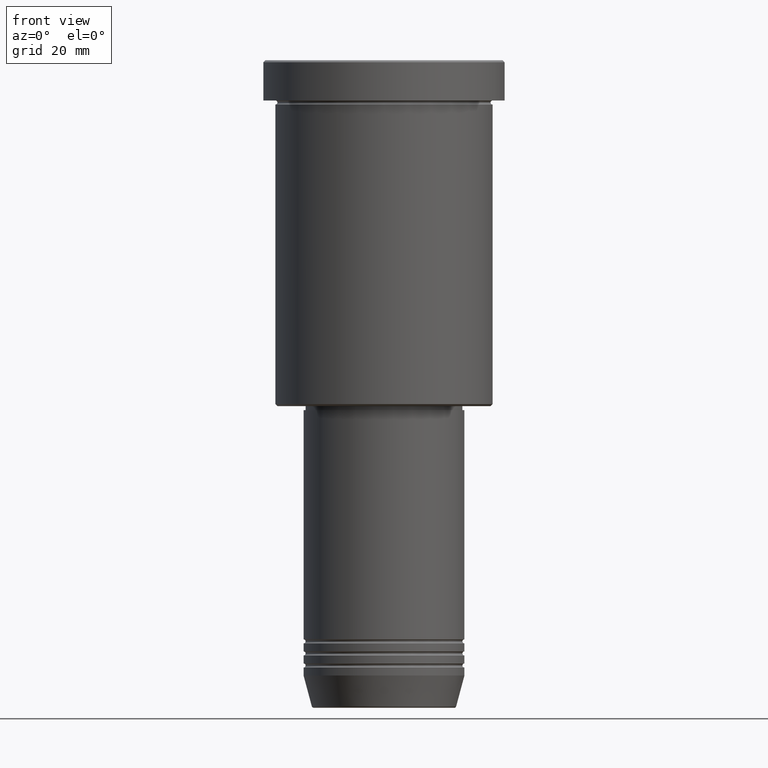
[diagram: clean part render]
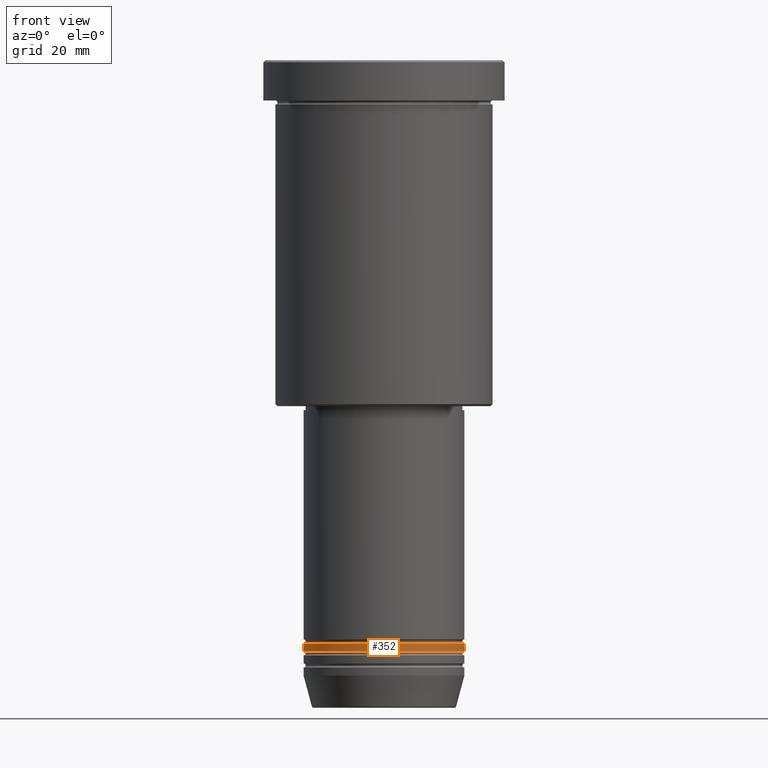
[diagram: same view with one face highlighted and labeled with its STEP entity id]
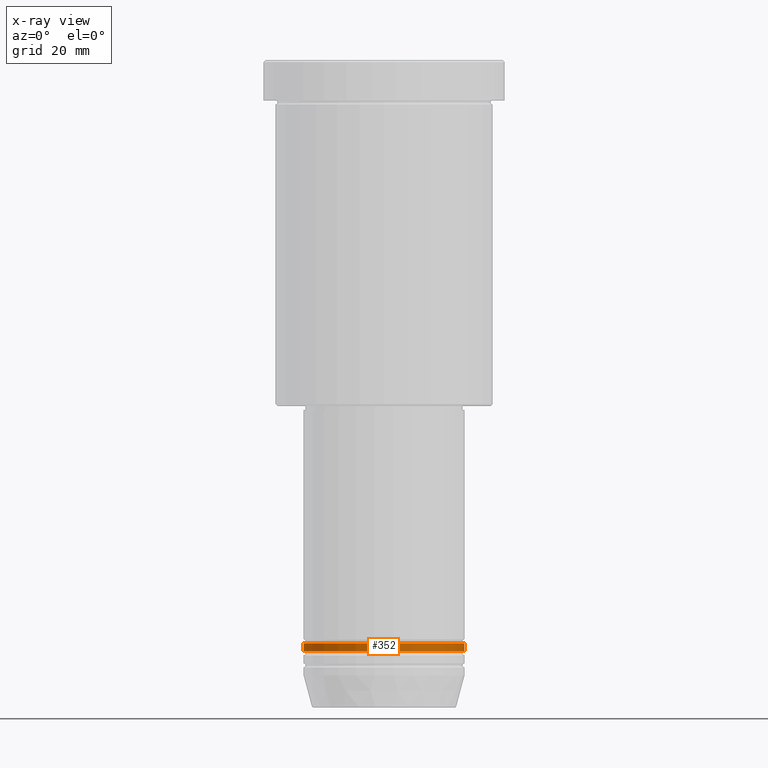
[diagram: x-ray of the same camera — body ghosted, the highlighted face saturated]
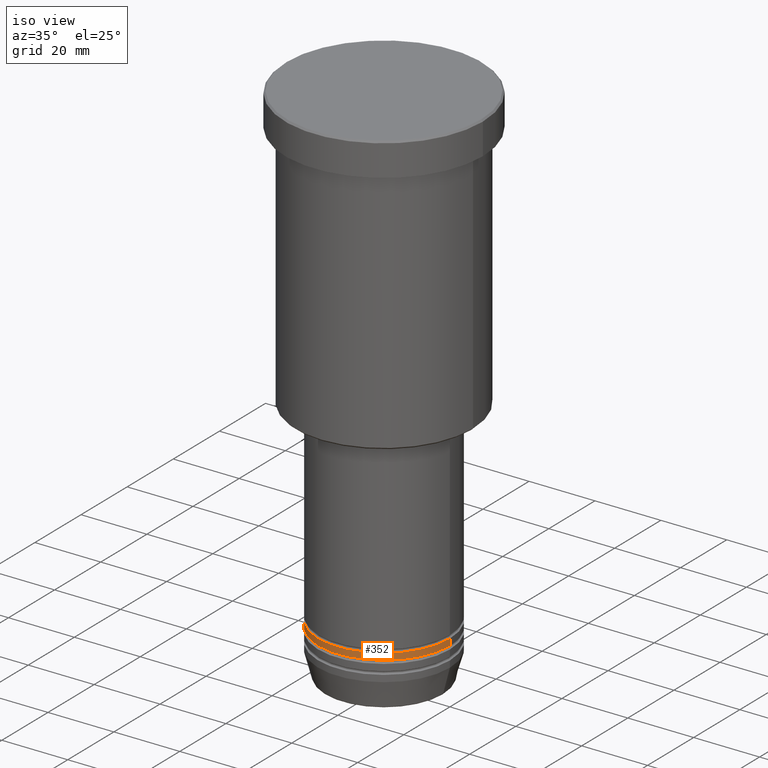
[diagram: same view with one face highlighted and labeled with its STEP entity id]
A machine part, front view. The second image highlights one B-rep face of the part: STEP entity #352.
The next image is the same camera in x-ray: the body ghosted, the highlighted face saturated — about 0% of this face is hidden behind the body in this view.
A second angle (iso view) of the same face is appended — the face is thin or edge-on in the first view.
In plain terms, the highlighted cylindrical surface (partial cylindrical patch) has radius 20 mm, axis along (-0, -0, 1).
Its self-contained STEP definition (entity closure, byte-faithful):
#14 = LINE ( 'NONE', #765, #993 ) ;
#34 = DIRECTION ( 'NONE',  ( -0.000000000000000000, -0.000000000000000000, 1.000000000000000000 ) ) ;
#63 = VERTEX_POINT ( 'NONE', #667 ) ;
#69 = AXIS2_PLACEMENT_3D ( 'NONE', #1002, #371, #910 ) ;
#77 = CARTESIAN_POINT ( 'NONE',  ( 20.00000000000000000, 0.000000000000000000, -146.9999999999999716 ) ) ;
#80 = EDGE_LOOP ( 'NONE', ( #146, #1064, #346, #363 ) ) ;
#96 = CYLINDRICAL_SURFACE ( 'NONE', #245, 20.00000000000000000 ) ;
#115 = EDGE_CURVE ( 'NONE', #135, #63, #14, .T. ) ;
#135 = VERTEX_POINT ( 'NONE', #988 ) ;
#146 = ORIENTED_EDGE ( 'NONE', *, *, #115, .F. ) ;
#166 = CARTESIAN_POINT ( 'NONE',  ( 20.00000000000000000, 0.000000000000000000, 0.000000000000000000 ) ) ;
#192 = DIRECTION ( 'NONE',  ( 1.000000000000000000, 0.000000000000000000, 0.000000000000000000 ) ) ;
#226 = EDGE_CURVE ( 'NONE', #872, #332, #721, .T. ) ;
#245 = AXIS2_PLACEMENT_3D ( 'NONE', #368, #308, #192 ) ;
#308 = DIRECTION ( 'NONE',  ( -0.000000000000000000, -0.000000000000000000, 1.000000000000000000 ) ) ;
#332 = VERTEX_POINT ( 'NONE', #851 ) ;
#346 = ORIENTED_EDGE ( 'NONE', *, *, #226, .T. ) ;
#352 = ADVANCED_FACE ( 'NONE', ( #654 ), #96, .T. ) ;
#363 = ORIENTED_EDGE ( 'NONE', *, *, #1155, .F. ) ;
#368 = CARTESIAN_POINT ( 'NONE',  ( 0.000000000000000000, 0.000000000000000000, 0.000000000000000000 ) ) ;
#371 = DIRECTION ( 'NONE',  ( -0.000000000000000000, -0.000000000000000000, 1.000000000000000000 ) ) ;
#388 = DIRECTION ( 'NONE',  ( 1.000000000000000000, 0.000000000000000000, 0.000000000000000000 ) ) ;
#532 = DIRECTION ( 'NONE',  ( -0.000000000000000000, -0.000000000000000000, 1.000000000000000000 ) ) ;
#599 = EDGE_CURVE ( 'NONE', #135, #872, #874, .T. ) ;
#654 = FACE_OUTER_BOUND ( 'NONE', #80, .T. ) ;
#667 = CARTESIAN_POINT ( 'NONE',  ( -20.00000000000000000, 2.449293598294706513E-15, -144.9999999999999716 ) ) ;
#721 = LINE ( 'NONE', #166, #1143 ) ;
#759 = AXIS2_PLACEMENT_3D ( 'NONE', #1030, #34, #388 ) ;
#765 = CARTESIAN_POINT ( 'NONE',  ( -20.00000000000000000, 2.449293598294706513E-15, 0.000000000000000000 ) ) ;
#851 = CARTESIAN_POINT ( 'NONE',  ( 20.00000000000000000, 0.000000000000000000, -144.9999999999999716 ) ) ;
#854 = DIRECTION ( 'NONE',  ( -0.000000000000000000, -0.000000000000000000, 1.000000000000000000 ) ) ;
#872 = VERTEX_POINT ( 'NONE', #77 ) ;
#874 = CIRCLE ( 'NONE', #759, 20.00000000000000000 ) ;
#910 = DIRECTION ( 'NONE',  ( 1.000000000000000000, 0.000000000000000000, 0.000000000000000000 ) ) ;
#988 = CARTESIAN_POINT ( 'NONE',  ( -20.00000000000000000, 2.449293598294706513E-15, -146.9999999999999716 ) ) ;
#993 = VECTOR ( 'NONE', #854, 1000.000000000000000 ) ;
#1002 = CARTESIAN_POINT ( 'NONE',  ( 0.000000000000000000, 0.000000000000000000, -144.9999999999999716 ) ) ;
#1030 = CARTESIAN_POINT ( 'NONE',  ( 0.000000000000000000, 0.000000000000000000, -146.9999999999999716 ) ) ;
#1064 = ORIENTED_EDGE ( 'NONE', *, *, #599, .T. ) ;
#1143 = VECTOR ( 'NONE', #532, 1000.000000000000000 ) ;
#1155 = EDGE_CURVE ( 'NONE', #63, #332, #1177, .T. ) ;
#1177 = CIRCLE ( 'NONE', #69, 20.00000000000000000 ) ;